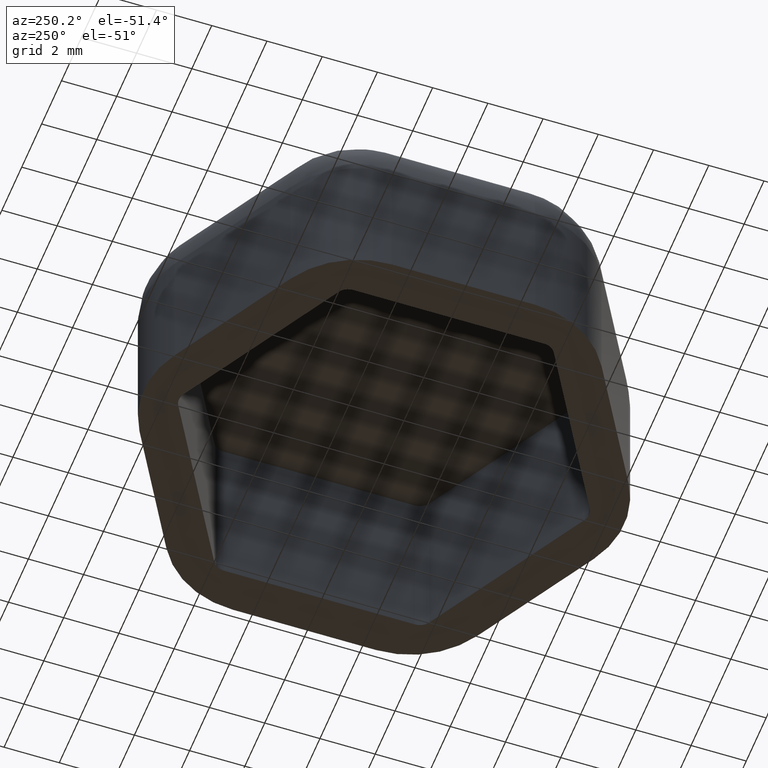
[diagram: clean part render]
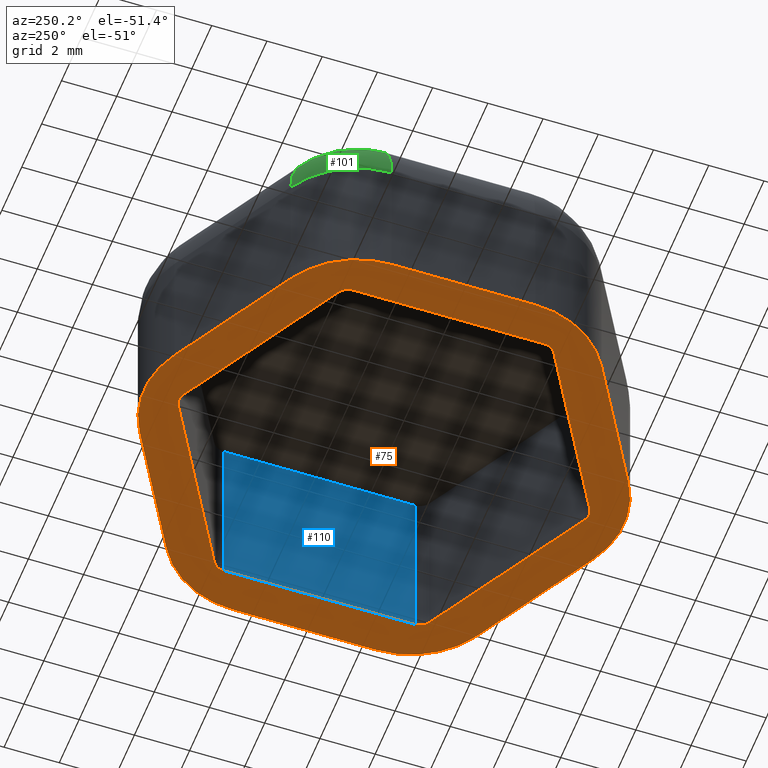
[diagram: same view with three faces highlighted in distinct colors, each labeled with its STEP entity id]
A machine part, auxiliary view with three faces highlighted in distinct colors.
Their STEP definitions:

[orange] entity #75 — the highlighted planar face has unit normal (0, 0, -1).
#75 = ADVANCED_FACE( '', ( #115, #116 ), #117, .T. );
#115 = FACE_OUTER_BOUND( '', #194, .T. );
#116 = FACE_BOUND( '', #195, .T. );
#117 = PLANE( '', #196 );
#194 = EDGE_LOOP( '', ( #405, #406, #407, #408, #409, #410, #411, #412, #413, #414, #415, #416 ) );
#195 = EDGE_LOOP( '', ( #417, #418, #419, #420, #421, #422, #423, #424, #425, #426, #427, #428 ) );
#196 = AXIS2_PLACEMENT_3D( '', #429, #430, #431 );
#405 = ORIENTED_EDGE( '', *, *, #696, .T. );
#406 = ORIENTED_EDGE( '', *, *, #697, .T. );
#407 = ORIENTED_EDGE( '', *, *, #698, .T. );
#408 = ORIENTED_EDGE( '', *, *, #699, .T. );
#409 = ORIENTED_EDGE( '', *, *, #700, .T. );
#410 = ORIENTED_EDGE( '', *, *, #701, .T. );
#411 = ORIENTED_EDGE( '', *, *, #702, .T. );
#412 = ORIENTED_EDGE( '', *, *, #703, .T. );
#413 = ORIENTED_EDGE( '', *, *, #704, .T. );
#414 = ORIENTED_EDGE( '', *, *, #705, .T. );
#415 = ORIENTED_EDGE( '', *, *, #706, .T. );
#416 = ORIENTED_EDGE( '', *, *, #707, .T. );
#417 = ORIENTED_EDGE( '', *, *, #708, .T. );
#418 = ORIENTED_EDGE( '', *, *, #709, .T. );
#419 = ORIENTED_EDGE( '', *, *, #710, .T. );
#420 = ORIENTED_EDGE( '', *, *, #711, .T. );
#421 = ORIENTED_EDGE( '', *, *, #712, .T. );
#422 = ORIENTED_EDGE( '', *, *, #713, .T. );
#423 = ORIENTED_EDGE( '', *, *, #714, .T. );
#424 = ORIENTED_EDGE( '', *, *, #715, .T. );
#425 = ORIENTED_EDGE( '', *, *, #716, .T. );
#426 = ORIENTED_EDGE( '', *, *, #717, .T. );
#427 = ORIENTED_EDGE( '', *, *, #718, .T. );
#428 = ORIENTED_EDGE( '', *, *, #719, .T. );
#429 = CARTESIAN_POINT( '', ( -4.50000000000000, 2.59807621135332, -5.51072859220070E-016 ) );
#430 = DIRECTION( '', ( 1.22460635382238E-016, 6.46234853557053E-033, -1.00000000000000 ) );
#431 = DIRECTION( '', ( -0.500000000000000, 0.866025403784439, -6.12303176911189E-017 ) );
#696 = EDGE_CURVE( '', #792, #793, #794, .T. );
#697 = EDGE_CURVE( '', #793, #795, #796, .T. );
#698 = EDGE_CURVE( '', #795, #797, #798, .T. );
#699 = EDGE_CURVE( '', #797, #799, #800, .T. );
#700 = EDGE_CURVE( '', #799, #801, #802, .T. );
#701 = EDGE_CURVE( '', #801, #803, #804, .T. );
#702 = EDGE_CURVE( '', #803, #805, #806, .T. );
#703 = EDGE_CURVE( '', #805, #807, #808, .T. );
#704 = EDGE_CURVE( '', #807, #809, #810, .T. );
#705 = EDGE_CURVE( '', #809, #811, #812, .T. );
#706 = EDGE_CURVE( '', #811, #813, #814, .T. );
#707 = EDGE_CURVE( '', #813, #792, #815, .T. );
#708 = EDGE_CURVE( '', #816, #817, #818, .T. );
#709 = EDGE_CURVE( '', #817, #819, #820, .F. );
#710 = EDGE_CURVE( '', #819, #821, #822, .T. );
#711 = EDGE_CURVE( '', #821, #823, #824, .F. );
#712 = EDGE_CURVE( '', #823, #825, #826, .T. );
#713 = EDGE_CURVE( '', #825, #827, #828, .F. );
#714 = EDGE_CURVE( '', #827, #829, #830, .T. );
#715 = EDGE_CURVE( '', #829, #831, #832, .F. );
#716 = EDGE_CURVE( '', #831, #833, #834, .T. );
#717 = EDGE_CURVE( '', #833, #835, #836, .F. );
#718 = EDGE_CURVE( '', #835, #837, #838, .T. );
#719 = EDGE_CURVE( '', #837, #816, #839, .F. );
#792 = VERTEX_POINT( '', #948 );
#793 = VERTEX_POINT( '', #949 );
#794 = CIRCLE( '', #950, 3.50000000000000 );
#795 = VERTEX_POINT( '', #951 );
#796 = LINE( '', #952, #953 );
#797 = VERTEX_POINT( '', #954 );
#798 = CIRCLE( '', #955, 3.50000000000000 );
#799 = VERTEX_POINT( '', #956 );
#800 = LINE( '', #957, #958 );
#801 = VERTEX_POINT( '', #959 );
#802 = CIRCLE( '', #960, 3.50000000000000 );
#803 = VERTEX_POINT( '', #961 );
#804 = LINE( '', #962, #963 );
#805 = VERTEX_POINT( '', #964 );
#806 = CIRCLE( '', #965, 3.50000000000000 );
#807 = VERTEX_POINT( '', #966 );
#808 = LINE( '', #967, #968 );
#809 = VERTEX_POINT( '', #969 );
#810 = CIRCLE( '', #970, 3.50000000000000 );
#811 = VERTEX_POINT( '', #971 );
#812 = LINE( '', #972, #973 );
#813 = VERTEX_POINT( '', #974 );
#814 = CIRCLE( '', #975, 3.50000000000000 );
#815 = LINE( '', #976, #977 );
#816 = VERTEX_POINT( '', #978 );
#817 = VERTEX_POINT( '', #979 );
#818 = LINE( '', #980, #981 );
#819 = VERTEX_POINT( '', #982 );
#820 = CIRCLE( '', #983, 0.500000000000000 );
#821 = VERTEX_POINT( '', #984 );
#822 = LINE( '', #985, #986 );
#823 = VERTEX_POINT( '', #987 );
#824 = CIRCLE( '', #988, 0.500000000000000 );
#825 = VERTEX_POINT( '', #989 );
#826 = LINE( '', #990, #991 );
#827 = VERTEX_POINT( '', #992 );
#828 = CIRCLE( '', #993, 0.500000000000000 );
#829 = VERTEX_POINT( '', #994 );
#830 = LINE( '', #995, #996 );
#831 = VERTEX_POINT( '', #997 );
#832 = CIRCLE( '', #998, 0.500000000000000 );
#833 = VERTEX_POINT( '', #999 );
#834 = LINE( '', #1000, #1001 );
#835 = VERTEX_POINT( '', #1002 );
#836 = CIRCLE( '', #1003, 0.500000000000001 );
#837 = VERTEX_POINT( '', #1004 );
#838 = LINE( '', #1005, #1006 );
#839 = CIRCLE( '', #1007, 0.500000000000000 );
#948 = CARTESIAN_POINT( '', ( -8.00000000000000, 2.59807621135331, -9.79685083057902E-016 ) );
#949 = CARTESIAN_POINT( '', ( -6.25000000000000, 5.62916512459885, -7.65378971138986E-016 ) );
#950 = AXIS2_PLACEMENT_3D( '', #1158, #1159, #1160 );
#951 = CARTESIAN_POINT( '', ( -1.75000000000000, 8.22724133595217, -2.14306111918916E-016 ) );
#952 = CARTESIAN_POINT( '', ( -6.25000000000000, 5.62916512459885, -7.65378971138986E-016 ) );
#953 = VECTOR( '', #1161, 1000.00000000000 );
#954 = CARTESIAN_POINT( '', ( 1.74999999999999, 8.22724133595217, 2.14306111918915E-016 ) );
#955 = AXIS2_PLACEMENT_3D( '', #1162, #1163, #1164 );
#956 = CARTESIAN_POINT( '', ( 6.25000000000000, 5.62916512459885, 7.65378971138986E-016 ) );
#957 = CARTESIAN_POINT( '', ( 1.75000000000000, 8.22724133595217, 2.14306111918916E-016 ) );
#958 = VECTOR( '', #1165, 1000.00000000000 );
#959 = CARTESIAN_POINT( '', ( 8.00000000000000, 2.59807621135332, 9.79685083057902E-016 ) );
#960 = AXIS2_PLACEMENT_3D( '', #1166, #1167, #1168 );
#961 = CARTESIAN_POINT( '', ( 8.00000000000000, -2.59807621135332, 9.79685083057902E-016 ) );
#962 = CARTESIAN_POINT( '', ( 8.00000000000000, 2.59807621135331, 9.79685083057902E-016 ) );
#963 = VECTOR( '', #1169, 1000.00000000000 );
#964 = CARTESIAN_POINT( '', ( 6.25000000000000, -5.62916512459885, 7.65378971138986E-016 ) );
#965 = AXIS2_PLACEMENT_3D( '', #1170, #1171, #1172 );
#966 = CARTESIAN_POINT( '', ( 1.75000000000000, -8.22724133595217, 2.14306111918916E-016 ) );
#967 = CARTESIAN_POINT( '', ( 6.25000000000000, -5.62916512459885, 7.65378971138986E-016 ) );
#968 = VECTOR( '', #1173, 1000.00000000000 );
#969 = CARTESIAN_POINT( '', ( -1.75000000000000, -8.22724133595217, -2.14306111918916E-016 ) );
#970 = AXIS2_PLACEMENT_3D( '', #1174, #1175, #1176 );
#971 = CARTESIAN_POINT( '', ( -6.25000000000000, -5.62916512459886, -7.65378971138985E-016 ) );
#972 = CARTESIAN_POINT( '', ( -1.75000000000000, -8.22724133595217, -2.14306111918916E-016 ) );
#973 = VECTOR( '', #1177, 1000.00000000000 );
#974 = CARTESIAN_POINT( '', ( -8.00000000000000, -2.59807621135332, -9.79685083057901E-016 ) );
#975 = AXIS2_PLACEMENT_3D( '', #1178, #1179, #1180 );
#976 = CARTESIAN_POINT( '', ( -8.00000000000000, -2.59807621135332, -9.79685083057902E-016 ) );
#977 = VECTOR( '', #1181, 1000.00000000000 );
#978 = CARTESIAN_POINT( '', ( -0.250000000000001, 7.36121593216773, -3.06151588455596E-017 ) );
#979 = CARTESIAN_POINT( '', ( -6.25000000000000, 3.89711431702997, -7.65378971138986E-016 ) );
#980 = CARTESIAN_POINT( '', ( -5.50000000000000, 4.33012701892219, -6.73533494602308E-016 ) );
#981 = VECTOR( '', #1182, 1000.00000000000 );
#982 = CARTESIAN_POINT( '', ( -6.50000000000000, 3.46410161513775, -7.95994129984545E-016 ) );
#983 = AXIS2_PLACEMENT_3D( '', #1183, #1184, #1185 );
#984 = CARTESIAN_POINT( '', ( -6.50000000000000, -3.46410161513776, -7.95994129984545E-016 ) );
#985 = CARTESIAN_POINT( '', ( -6.50000000000000, 2.59807621135332, -7.95994129984545E-016 ) );
#986 = VECTOR( '', #1186, 1000.00000000000 );
#987 = CARTESIAN_POINT( '', ( -6.25000000000000, -3.89711431702998, -7.65378971138985E-016 ) );
#988 = AXIS2_PLACEMENT_3D( '', #1187, #1188, #1189 );
#989 = CARTESIAN_POINT( '', ( -0.249999999999999, -7.36121593216773, -3.06151588455594E-017 ) );
#990 = CARTESIAN_POINT( '', ( -7.75000000000000, -3.03108891324554, -9.49069924212342E-016 ) );
#991 = VECTOR( '', #1190, 1000.00000000000 );
#992 = CARTESIAN_POINT( '', ( 0.250000000000003, -7.36121593216773, 3.06151588455598E-017 ) );
#993 = AXIS2_PLACEMENT_3D( '', #1191, #1192, #1193 );
#994 = CARTESIAN_POINT( '', ( 6.25000000000000, -3.89711431702998, 7.65378971138986E-016 ) );
#995 = CARTESIAN_POINT( '', ( 1.00000000000000, -6.92820323027551, 1.22460635382238E-016 ) );
#996 = VECTOR( '', #1194, 1000.00000000000 );
#997 = CARTESIAN_POINT( '', ( 6.50000000000000, -3.46410161513776, 7.95994129984545E-016 ) );
#998 = AXIS2_PLACEMENT_3D( '', #1195, #1196, #1197 );
#999 = CARTESIAN_POINT( '', ( 6.50000000000000, 3.46410161513775, 7.95994129984545E-016 ) );
#1000 = CARTESIAN_POINT( '', ( 6.50000000000000, 2.59807621135332, 7.95994129984546E-016 ) );
#1001 = VECTOR( '', #1198, 1000.00000000000 );
#1002 = CARTESIAN_POINT( '', ( 6.25000000000000, 3.89711431702997, 7.65378971138986E-016 ) );
#1003 = AXIS2_PLACEMENT_3D( '', #1199, #1200, #1201 );
#1004 = CARTESIAN_POINT( '', ( 0.249999999999999, 7.36121593216773, 3.06151588455592E-017 ) );
#1005 = CARTESIAN_POINT( '', ( -1.25000000000000, 8.22724133595217, -1.53075794227797E-016 ) );
#1006 = VECTOR( '', #1202, 1000.00000000000 );
#1007 = AXIS2_PLACEMENT_3D( '', #1203, #1204, #1205 );
#1158 = CARTESIAN_POINT( '', ( -4.50000000000000, 2.59807621135332, -5.51072859220070E-016 ) );
#1159 = DIRECTION( '', ( 1.22460635382238E-016, 0.000000000000000, -1.00000000000000 ) );
#1160 = DIRECTION( '', ( -1.00000000000000, -1.66533453693773E-016, -1.22460635382238E-016 ) );
#1161 = DIRECTION( '', ( 0.866025403784439, 0.500000000000000, 1.06054021204601E-016 ) );
#1162 = CARTESIAN_POINT( '', ( -1.73472347597681E-015, 5.19615242270663, -2.12435339080604E-031 ) );
#1163 = DIRECTION( '', ( 1.22460635382238E-016, 0.000000000000000, -1.00000000000000 ) );
#1164 = DIRECTION( '', ( -0.500000000000000, 0.866025403784438, -6.12303176911189E-017 ) );
#1165 = DIRECTION( '', ( 0.866025403784439, -0.500000000000000, 1.06054021204601E-016 ) );
#1166 = CARTESIAN_POINT( '', ( 4.50000000000000, 2.59807621135332, 5.51072859220070E-016 ) );
#1167 = DIRECTION( '', ( 1.22460635382238E-016, 0.000000000000000, -1.00000000000000 ) );
#1168 = DIRECTION( '', ( 0.500000000000000, 0.866025403784439, 6.12303176911189E-017 ) );
#1169 = DIRECTION( '', ( -5.55111512312578E-017, -1.00000000000000, -6.79793085057932E-033 ) );
#1170 = CARTESIAN_POINT( '', ( 4.50000000000000, -2.59807621135332, 5.51072859220070E-016 ) );
#1171 = DIRECTION( '', ( 1.22460635382238E-016, 0.000000000000000, -1.00000000000000 ) );
#1172 = DIRECTION( '', ( 1.00000000000000, 2.22044604925031E-016, 1.22460635382238E-016 ) );
#1173 = DIRECTION( '', ( -0.866025403784439, -0.500000000000000, -1.06054021204601E-016 ) );
#1174 = CARTESIAN_POINT( '', ( 8.67361737988404E-016, -5.19615242270663, 1.06217669540302E-031 ) );
#1175 = DIRECTION( '', ( 1.22460635382238E-016, -8.04960107368380E-033, -1.00000000000000 ) );
#1176 = DIRECTION( '', ( 0.500000000000000, -0.866025403784438, 6.12303176911189E-017 ) );
#1177 = DIRECTION( '', ( -0.866025403784439, 0.500000000000000, -1.06054021204601E-016 ) );
#1178 = CARTESIAN_POINT( '', ( -4.50000000000000, -2.59807621135332, -5.51072859220069E-016 ) );
#1179 = DIRECTION( '', ( 1.22460635382238E-016, 8.04960107368379E-033, -1.00000000000000 ) );
#1180 = DIRECTION( '', ( -0.500000000000000, -0.866025403784439, -6.12303176911189E-017 ) );
#1181 = DIRECTION( '', ( -3.33066907387547E-016, 1.00000000000000, -4.07875851034759E-032 ) );
#1182 = DIRECTION( '', ( -0.866025403784439, -0.500000000000000, -1.06054021204601E-016 ) );
#1183 = CARTESIAN_POINT( '', ( -6.00000000000000, 3.46410161513775, -7.34763812293426E-016 ) );
#1184 = DIRECTION( '', ( 1.22460635382238E-016, 0.000000000000000, -1.00000000000000 ) );
#1185 = DIRECTION( '', ( -1.00000000000000, 0.000000000000000, -1.22460635382238E-016 ) );
#1186 = DIRECTION( '', ( 3.33066907387547E-016, -1.00000000000000, 4.07875851034759E-032 ) );
#1187 = CARTESIAN_POINT( '', ( -6.00000000000000, -3.46410161513776, -7.34763812293426E-016 ) );
#1188 = DIRECTION( '', ( 1.22460635382238E-016, 0.000000000000000, -1.00000000000000 ) );
#1189 = DIRECTION( '', ( -1.00000000000000, 0.000000000000000, -1.22460635382238E-016 ) );
#1190 = DIRECTION( '', ( 0.866025403784439, -0.500000000000000, 1.06054021204601E-016 ) );
#1191 = CARTESIAN_POINT( '', ( 8.67361737988404E-016, -6.92820323027551, 1.06217669540302E-031 ) );
#1192 = DIRECTION( '', ( 1.22460635382238E-016, 0.000000000000000, -1.00000000000000 ) );
#1193 = DIRECTION( '', ( -1.00000000000000, 0.000000000000000, -1.22460635382238E-016 ) );
#1194 = DIRECTION( '', ( 0.866025403784439, 0.500000000000000, 1.06054021204601E-016 ) );
#1195 = CARTESIAN_POINT( '', ( 6.00000000000000, -3.46410161513776, 7.34763812293426E-016 ) );
#1196 = DIRECTION( '', ( 1.22460635382238E-016, 0.000000000000000, -1.00000000000000 ) );
#1197 = DIRECTION( '', ( -1.00000000000000, 0.000000000000000, -1.22460635382238E-016 ) );
#1198 = DIRECTION( '', ( 0.000000000000000, 1.00000000000000, 0.000000000000000 ) );
#1199 = CARTESIAN_POINT( '', ( 6.00000000000000, 3.46410161513776, 7.34763812293426E-016 ) );
#1200 = DIRECTION( '', ( 1.22460635382238E-016, 0.000000000000000, -1.00000000000000 ) );
#1201 = DIRECTION( '', ( -1.00000000000000, 0.000000000000000, -1.22460635382238E-016 ) );
#1202 = DIRECTION( '', ( -0.866025403784439, 0.500000000000000, -1.06054021204601E-016 ) );
#1203 = CARTESIAN_POINT( '', ( -1.73472347597681E-015, 6.92820323027551, -2.12435339080604E-031 ) );
#1204 = DIRECTION( '', ( 1.22460635382238E-016, 0.000000000000000, -1.00000000000000 ) );
#1205 = DIRECTION( '', ( -1.00000000000000, 0.000000000000000, -1.22460635382238E-016 ) );

[blue] entity #110 — the highlighted planar face has unit normal (-1, 0, -0).
#110 = ADVANCED_FACE( '', ( #186 ), #187, .T. );
#186 = FACE_OUTER_BOUND( '', #397, .T. );
#187 = PLANE( '', #398 );
#397 = EDGE_LOOP( '', ( #668, #669, #670, #671 ) );
#398 = AXIS2_PLACEMENT_3D( '', #672, #673, #674 );
#668 = ORIENTED_EDGE( '', *, *, #788, .T. );
#669 = ORIENTED_EDGE( '', *, *, #731, .F. );
#670 = ORIENTED_EDGE( '', *, *, #789, .F. );
#671 = ORIENTED_EDGE( '', *, *, #716, .F. );
#672 = CARTESIAN_POINT( '', ( 6.50000000000001, 3.46410161513775, -30.0000000000000 ) );
#673 = DIRECTION( '', ( -1.00000000000000, 0.000000000000000, -1.22460635382238E-016 ) );
#674 = DIRECTION( '', ( 0.000000000000000, 1.00000000000000, 0.000000000000000 ) );
#716 = EDGE_CURVE( '', #831, #833, #834, .T. );
#731 = EDGE_CURVE( '', #857, #859, #860, .T. );
#788 = EDGE_CURVE( '', #831, #859, #944, .T. );
#789 = EDGE_CURVE( '', #833, #857, #945, .T. );
#831 = VERTEX_POINT( '', #997 );
#833 = VERTEX_POINT( '', #999 );
#834 = LINE( '', #1000, #1001 );
#857 = VERTEX_POINT( '', #1032 );
#859 = VERTEX_POINT( '', #1034 );
#860 = LINE( '', #1035, #1036 );
#944 = LINE( '', #1150, #1151 );
#945 = LINE( '', #1152, #1153 );
#997 = CARTESIAN_POINT( '', ( 6.50000000000000, -3.46410161513776, 7.95994129984545E-016 ) );
#999 = CARTESIAN_POINT( '', ( 6.50000000000000, 3.46410161513775, 7.95994129984545E-016 ) );
#1000 = CARTESIAN_POINT( '', ( 6.50000000000000, 2.59807621135332, 7.95994129984546E-016 ) );
#1001 = VECTOR( '', #1198, 1000.00000000000 );
#1032 = CARTESIAN_POINT( '', ( 6.50000000000000, 3.46410161513775, 6.50000000000000 ) );
#1034 = CARTESIAN_POINT( '', ( 6.50000000000000, -3.46410161513776, 6.50000000000000 ) );
#1035 = CARTESIAN_POINT( '', ( 6.50000000000000, 3.46410161513775, 6.50000000000000 ) );
#1036 = VECTOR( '', #1225, 1000.00000000000 );
#1150 = CARTESIAN_POINT( '', ( 6.50000000000000, -3.46410161513776, -30.0000000000000 ) );
#1151 = VECTOR( '', #1334, 1000.00000000000 );
#1152 = CARTESIAN_POINT( '', ( 6.50000000000000, 3.46410161513775, -30.0000000000000 ) );
#1153 = VECTOR( '', #1335, 1000.00000000000 );
#1198 = DIRECTION( '', ( 0.000000000000000, 1.00000000000000, 0.000000000000000 ) );
#1225 = DIRECTION( '', ( -5.55111512312578E-017, -1.00000000000000, -6.79793085057932E-033 ) );
#1334 = DIRECTION( '', ( -1.22460635382238E-016, 0.000000000000000, 1.00000000000000 ) );
#1335 = DIRECTION( '', ( -1.22460635382238E-016, 0.000000000000000, 1.00000000000000 ) );

[green] entity #101 — the highlighted face is a freeform B-spline surface patch.
#101 = ADVANCED_FACE( '', ( #168 ), #169, .T. );
#168 = FACE_OUTER_BOUND( '', #335, .T. );
#169 = ( B_SPLINE_SURFACE( 3, 3, ( ( #337, #338, #339, #340 ), ( #341, #342, #343, #344 ), ( #345, #346, #347, #348 ), ( #349, #350, #351, #352 ) ), .UNSPECIFIED., .F., .F., .F. )B_SPLINE_SURFACE_WITH_KNOTS( ( 4, 4 ), ( 4, 4 ), ( 0.000000000000000, 1.04719755119660 ), ( -1.57079632679490, 0.000000000000000 ), .UNSPECIFIED. )RATIONAL_B_SPLINE_SURFACE( ( ( 1.00000000000000, 0.910683602522959, 0.910683602522959, 1.00000000000000 ), ( 0.804737854124365, 0.732861568080572, 0.732861568080572, 0.804737854124365 ), ( 0.804737854124365, 0.732861568080572, 0.732861568080572, 0.804737854124365 ), ( 1.00000000000000, 0.910683602522959, 0.910683602522959, 1.00000000000000 ) ) )BOUNDED_SURFACE(  )REPRESENTATION_ITEM( '' )GEOMETRIC_REPRESENTATION_ITEM(  )SURFACE(  ) );
#335 = EDGE_LOOP( '', ( #611, #612, #613, #614 ) );
#337 = CARTESIAN_POINT( '', ( -8.00000000000000, 2.59807621135332, 5.00000000000000 ) );
#338 = CARTESIAN_POINT( '', ( -8.00000000000000, 3.87916512459885, 5.00000000000000 ) );
#339 = CARTESIAN_POINT( '', ( -7.35945554337723, 4.98862066797608, 5.00000000000000 ) );
#340 = CARTESIAN_POINT( '', ( -6.25000000000000, 5.62916512459885, 5.00000000000000 ) );
#341 = CARTESIAN_POINT( '', ( -8.00000000000000, 2.59807621135332, 6.75735931288072 ) );
#342 = CARTESIAN_POINT( '', ( -8.00000000000000, 3.87916512459885, 6.75735931288072 ) );
#343 = CARTESIAN_POINT( '', ( -7.35945554337723, 4.98862066797608, 6.75735931288072 ) );
#344 = CARTESIAN_POINT( '', ( -6.25000000000000, 5.62916512459885, 6.75735931288072 ) );
#345 = CARTESIAN_POINT( '', ( -6.75735931288072, 2.59807621135332, 8.00000000000000 ) );
#346 = CARTESIAN_POINT( '', ( -6.75735931288072, 3.42432706533704, 8.00000000000000 ) );
#347 = CARTESIAN_POINT( '', ( -6.34423388588885, 4.13988129478554, 8.00000000000000 ) );
#348 = CARTESIAN_POINT( '', ( -5.62867965644036, 4.55300672177740, 8.00000000000000 ) );
#349 = CARTESIAN_POINT( '', ( -5.00000000000000, 2.59807621135332, 8.00000000000000 ) );
#350 = CARTESIAN_POINT( '', ( -5.00000000000000, 2.78108891324553, 8.00000000000000 ) );
#351 = CARTESIAN_POINT( '', ( -4.90849364905389, 2.93958256229943, 8.00000000000000 ) );
#352 = CARTESIAN_POINT( '', ( -4.75000000000000, 3.03108891324554, 8.00000000000000 ) );
#611 = ORIENTED_EDGE( '', *, *, #781, .T. );
#612 = ORIENTED_EDGE( '', *, *, #721, .F. );
#613 = ORIENTED_EDGE( '', *, *, #779, .F. );
#614 = ORIENTED_EDGE( '', *, *, #767, .F. );
#721 = EDGE_CURVE( '', #840, #842, #843, .T. );
#767 = EDGE_CURVE( '', #918, #920, #921, .F. );
#779 = EDGE_CURVE( '', #920, #840, #935, .T. );
#781 = EDGE_CURVE( '', #918, #842, #937, .T. );
#840 = VERTEX_POINT( '', #1008 );
#842 = VERTEX_POINT( '', #1011 );
#843 = CIRCLE( '', #1012, 3.50000000000000 );
#918 = VERTEX_POINT( '', #1116 );
#920 = VERTEX_POINT( '', #1119 );
#921 = CIRCLE( '', #1120, 0.500000000000000 );
#935 = CIRCLE( '', #1136, 3.00000000000000 );
#937 = CIRCLE( '', #1138, 3.00000000000000 );
#1008 = CARTESIAN_POINT( '', ( -8.00000000000000, 2.59807621135331, 5.00000000000000 ) );
#1011 = CARTESIAN_POINT( '', ( -6.25000000000000, 5.62916512459885, 5.00000000000000 ) );
#1012 = AXIS2_PLACEMENT_3D( '', #1207, #1208, #1209 );
#1116 = CARTESIAN_POINT( '', ( -4.75000000000000, 3.03108891324554, 8.00000000000000 ) );
#1119 = CARTESIAN_POINT( '', ( -5.00000000000000, 2.59807621135332, 8.00000000000000 ) );
#1120 = AXIS2_PLACEMENT_3D( '', #1285, #1286, #1287 );
#1136 = AXIS2_PLACEMENT_3D( '', #1317, #1318, #1319 );
#1138 = AXIS2_PLACEMENT_3D( '', #1323, #1324, #1325 );
#1207 = CARTESIAN_POINT( '', ( -4.50000000000000, 2.59807621135332, 5.00000000000000 ) );
#1208 = DIRECTION( '', ( 1.22460635382238E-016, 0.000000000000000, -1.00000000000000 ) );
#1209 = DIRECTION( '', ( -1.00000000000000, 0.000000000000000, -1.22460635382238E-016 ) );
#1285 = CARTESIAN_POINT( '', ( -4.50000000000000, 2.59807621135332, 8.00000000000000 ) );
#1286 = DIRECTION( '', ( 1.22460635382238E-016, 0.000000000000000, -1.00000000000000 ) );
#1287 = DIRECTION( '', ( -1.00000000000000, 0.000000000000000, -1.22460635382238E-016 ) );
#1317 = CARTESIAN_POINT( '', ( -5.00000000000000, 2.59807621135332, 5.00000000000000 ) );
#1318 = DIRECTION( '', ( 4.33680868994202E-016, -1.00000000000000, 5.31088347701510E-032 ) );
#1319 = DIRECTION( '', ( -1.00000000000000, -4.33680868994202E-016, -1.22460635382238E-016 ) );
#1323 = CARTESIAN_POINT( '', ( -4.75000000000000, 3.03108891324554, 5.00000000000000 ) );
#1324 = DIRECTION( '', ( -0.866025403784439, -0.500000000000000, -1.06054021204601E-016 ) );
#1325 = DIRECTION( '', ( -0.500000000000000, 0.866025403784439, -6.12303176911189E-017 ) );